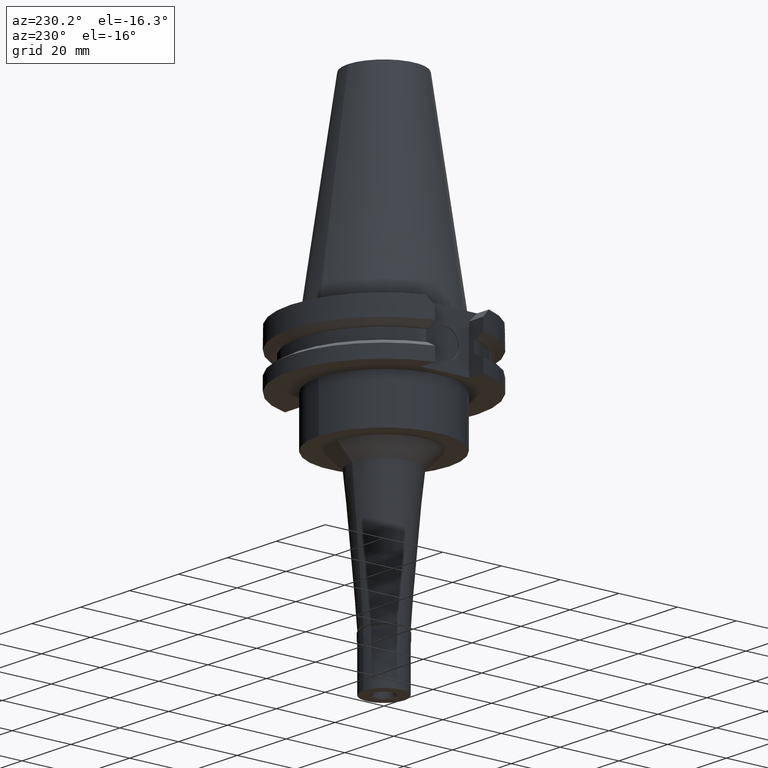
[diagram: clean part render]
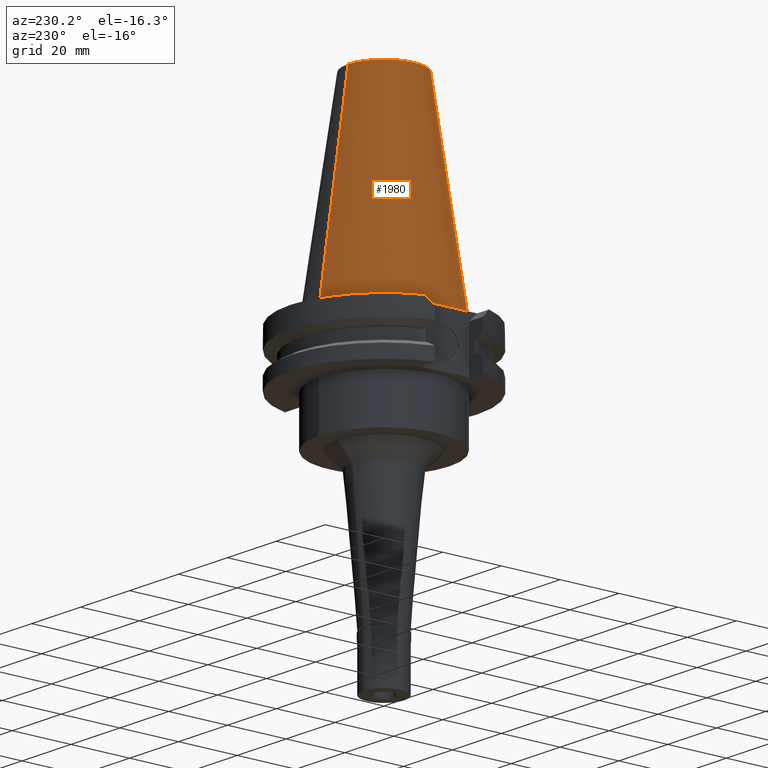
[diagram: same view with one face highlighted and labeled with its STEP entity id]
A machine part, auxiliary view. The second image highlights one B-rep face of the part: STEP entity #1980.
In plain terms, the highlighted conical surface has half-angle 8.297 deg.
Its self-contained STEP definition (entity closure, byte-faithful):
#375 = EDGE_CURVE ( 'NONE', #2744, #2578, #1932, .T. ) ;
#407 = CARTESIAN_POINT ( 'NONE',  ( 0.0000000000000000000, -22.22500000000000142, -1.847411112975999717E-13 ) ) ;
#490 = CARTESIAN_POINT ( 'NONE',  ( 0.0000000000000000000, 1.642557519355999895E-14, 34.12500000000000000 ) ) ;
#642 = ORIENTED_EDGE ( 'NONE', *, *, #977, .T. ) ;
#784 = VERTEX_POINT ( 'NONE', #407 ) ;
#941 = DIRECTION ( 'NONE',  ( 0.0000000000000000000, 0.0000000000000000000, -1.000000000000000000 ) ) ;
#977 = EDGE_CURVE ( 'NONE', #2578, #1558, #2663, .T. ) ;
#1066 = ORIENTED_EDGE ( 'NONE', *, *, #375, .T. ) ;
#1137 = DIRECTION ( 'NONE',  ( 0.0000000000000000000, -0.1443069799456937474, -0.9895329683941577192 ) ) ;
#1155 = DIRECTION ( 'NONE',  ( 0.0000000000000000000, -1.000000000000000000, 0.0000000000000000000 ) ) ;
#1285 = EDGE_LOOP ( 'NONE', ( #2753, #1862, #1066, #642 ) ) ;
#1351 = VECTOR ( 'NONE', #1908, 1000.000000000000114 ) ;
#1401 = CARTESIAN_POINT ( 'NONE',  ( 0.0000000000000000000, 1.642557519355999895E-14, -3.126388037344000570E-13 ) ) ;
#1529 = CIRCLE ( 'NONE', #2092, 22.22500000000000142 ) ;
#1558 = VERTEX_POINT ( 'NONE', #2199 ) ;
#1628 = CARTESIAN_POINT ( 'NONE',  ( 0.0000000000000000000, -12.27186888070000137, 68.25000000000000000 ) ) ;
#1706 = CONICAL_SURFACE ( 'NONE', #1751, 17.24843444035000317, 0.1448125860318199565 ) ;
#1725 = CARTESIAN_POINT ( 'NONE',  ( 0.0000000000000000000, 12.27186888070000137, 68.25000000000000000 ) ) ;
#1751 = AXIS2_PLACEMENT_3D ( 'NONE', #490, #2429, #2120 ) ;
#1794 = CARTESIAN_POINT ( 'NONE',  ( 0.0000000000000000000, -12.27186888070000137, 68.25000000000000000 ) ) ;
#1798 = LINE ( 'NONE', #1628, #2067 ) ;
#1800 = EDGE_CURVE ( 'NONE', #2744, #784, #1798, .T. ) ;
#1862 = ORIENTED_EDGE ( 'NONE', *, *, #1800, .F. ) ;
#1908 = DIRECTION ( 'NONE',  ( 0.0000000000000000000, 0.1443069799456937474, -0.9895329683941577192 ) ) ;
#1932 = CIRCLE ( 'NONE', #2465, 12.27186888070000137 ) ;
#1980 = ADVANCED_FACE ( 'NONE', ( #2697 ), #1706, .T. ) ;
#2067 = VECTOR ( 'NONE', #1137, 1000.000000000000114 ) ;
#2092 = AXIS2_PLACEMENT_3D ( 'NONE', #1401, #2932, #2133 ) ;
#2111 = CARTESIAN_POINT ( 'NONE',  ( 0.0000000000000000000, 1.642557519355999895E-14, 68.25000000000000000 ) ) ;
#2120 = DIRECTION ( 'NONE',  ( 0.0000000000000000000, -1.000000000000000000, 0.0000000000000000000 ) ) ;
#2133 = DIRECTION ( 'NONE',  ( 0.0000000000000000000, -1.000000000000000000, 0.0000000000000000000 ) ) ;
#2199 = CARTESIAN_POINT ( 'NONE',  ( 0.0000000000000000000, 22.22500000000000142, -1.847411112975999717E-13 ) ) ;
#2429 = DIRECTION ( 'NONE',  ( 0.0000000000000000000, 0.0000000000000000000, -1.000000000000000000 ) ) ;
#2444 = EDGE_CURVE ( 'NONE', #784, #1558, #1529, .T. ) ;
#2461 = CARTESIAN_POINT ( 'NONE',  ( 0.0000000000000000000, 12.27186888070000137, 68.25000000000000000 ) ) ;
#2465 = AXIS2_PLACEMENT_3D ( 'NONE', #2111, #941, #1155 ) ;
#2578 = VERTEX_POINT ( 'NONE', #2461 ) ;
#2663 = LINE ( 'NONE', #1725, #1351 ) ;
#2697 = FACE_OUTER_BOUND ( 'NONE', #1285, .T. ) ;
#2744 = VERTEX_POINT ( 'NONE', #1794 ) ;
#2753 = ORIENTED_EDGE ( 'NONE', *, *, #2444, .F. ) ;
#2932 = DIRECTION ( 'NONE',  ( 0.0000000000000000000, 0.0000000000000000000, -1.000000000000000000 ) ) ;